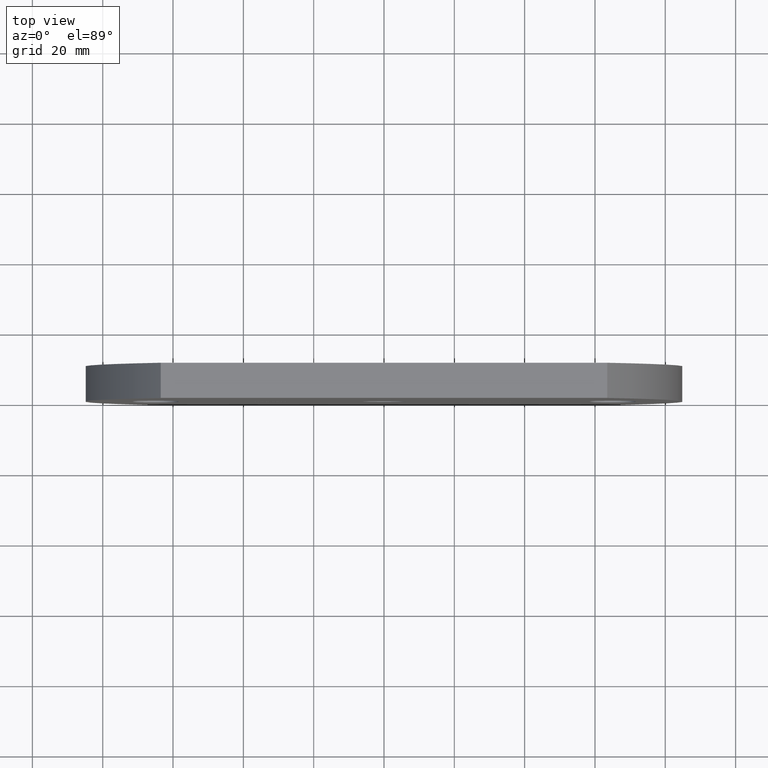
[diagram: clean part render]
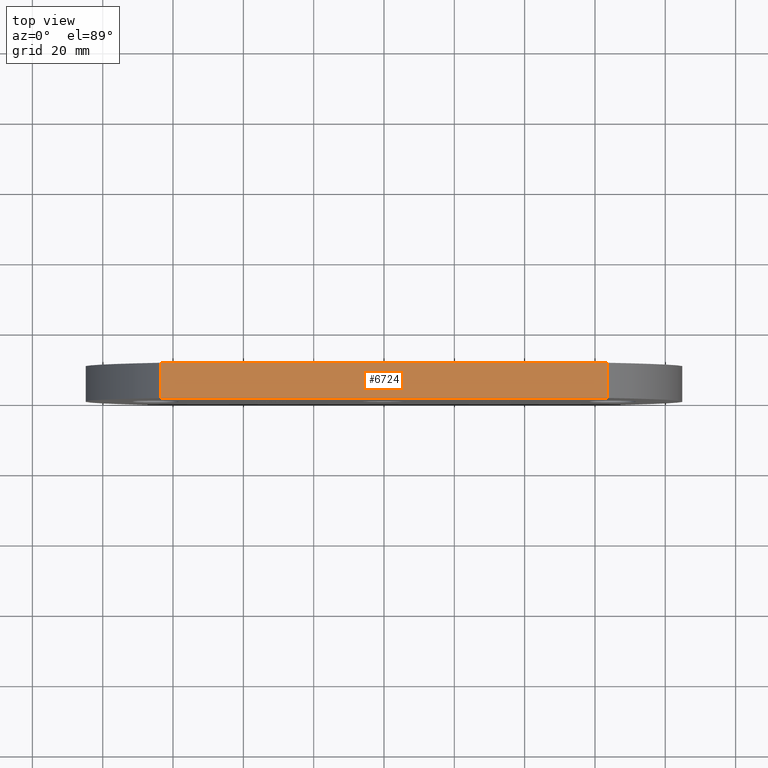
[diagram: same view with one face highlighted and labeled with its STEP entity id]
A machine part, top view. The second image highlights one B-rep face of the part: STEP entity #6724.
In plain terms, the highlighted planar face has unit normal (0, 0, -1).
Its self-contained STEP definition (entity closure, byte-faithful):
#15 = DIRECTION ( 'NONE',  ( 1.000000000000000000, 0.0000000000000000000, 3.824587191129968500E-016 ) ) ;
#1053 = CARTESIAN_POINT ( 'NONE',  ( -63.50000000000001400, 10.00000000000000000, 59.99999999999997900 ) ) ;
#1066 = EDGE_CURVE ( 'NONE', #2252, #2362, #4580, .T. ) ;
#1293 = EDGE_CURVE ( 'NONE', #2362, #3189, #6759, .T. ) ;
#1732 = EDGE_LOOP ( 'NONE', ( #5044, #1854, #10488, #2679 ) ) ;
#1759 = DIRECTION ( 'NONE',  ( -1.000000000000000000, 0.0000000000000000000, -3.824587191129968500E-016 ) ) ;
#1854 = ORIENTED_EDGE ( 'NONE', *, *, #1293, .F. ) ;
#2252 = VERTEX_POINT ( 'NONE', #9168 ) ;
#2362 = VERTEX_POINT ( 'NONE', #8503 ) ;
#2679 = ORIENTED_EDGE ( 'NONE', *, *, #5646, .T. ) ;
#2798 = CARTESIAN_POINT ( 'NONE',  ( 63.49999999999998600, 10.00000000000000000, 60.00000000000002800 ) ) ;
#3189 = VERTEX_POINT ( 'NONE', #7870 ) ;
#3279 = VECTOR ( 'NONE', #9814, 1000.000000000000000 ) ;
#3447 = DIRECTION ( 'NONE',  ( 3.824587191129968500E-016, 0.0000000000000000000, -1.000000000000000000 ) ) ;
#3457 = LINE ( 'NONE', #10426, #6831 ) ;
#4139 = CARTESIAN_POINT ( 'NONE',  ( -63.50000000000001400, 10.00000000000000000, 59.99999999999997900 ) ) ;
#4359 = PLANE ( 'NONE',  #8604 ) ;
#4580 = LINE ( 'NONE', #4139, #3279 ) ;
#4620 = FACE_OUTER_BOUND ( 'NONE', #1732, .T. ) ;
#5044 = ORIENTED_EDGE ( 'NONE', *, *, #7140, .T. ) ;
#5646 = EDGE_CURVE ( 'NONE', #2252, #7098, #3457, .T. ) ;
#6388 = VECTOR ( 'NONE', #8580, 1000.000000000000000 ) ;
#6526 = VECTOR ( 'NONE', #15, 1000.000000000000000 ) ;
#6724 = ADVANCED_FACE ( 'NONE', ( #4620 ), #4359, .F. ) ;
#6759 = LINE ( 'NONE', #2798, #6388 ) ;
#6831 = VECTOR ( 'NONE', #7953, 1000.000000000000000 ) ;
#7098 = VERTEX_POINT ( 'NONE', #7342 ) ;
#7140 = EDGE_CURVE ( 'NONE', #7098, #3189, #7817, .T. ) ;
#7342 = CARTESIAN_POINT ( 'NONE',  ( -63.50000000000001400, 0.0000000000000000000, 59.99999999999997900 ) ) ;
#7585 = CARTESIAN_POINT ( 'NONE',  ( -63.50000000000001400, 0.0000000000000000000, 59.99999999999997900 ) ) ;
#7817 = LINE ( 'NONE', #7585, #6526 ) ;
#7870 = CARTESIAN_POINT ( 'NONE',  ( 63.49999999999998600, 0.0000000000000000000, 60.00000000000002800 ) ) ;
#7953 = DIRECTION ( 'NONE',  ( -0.0000000000000000000, -1.000000000000000000, -0.0000000000000000000 ) ) ;
#8503 = CARTESIAN_POINT ( 'NONE',  ( 63.49999999999998600, 10.00000000000000000, 60.00000000000002800 ) ) ;
#8580 = DIRECTION ( 'NONE',  ( -0.0000000000000000000, -1.000000000000000000, -0.0000000000000000000 ) ) ;
#8604 = AXIS2_PLACEMENT_3D ( 'NONE', #1053, #3447, #1759 ) ;
#9168 = CARTESIAN_POINT ( 'NONE',  ( -63.50000000000001400, 10.00000000000000000, 59.99999999999997900 ) ) ;
#9814 = DIRECTION ( 'NONE',  ( 1.000000000000000000, 0.0000000000000000000, 3.824587191129968500E-016 ) ) ;
#10426 = CARTESIAN_POINT ( 'NONE',  ( -63.50000000000001400, 10.00000000000000000, 59.99999999999997900 ) ) ;
#10488 = ORIENTED_EDGE ( 'NONE', *, *, #1066, .F. ) ;